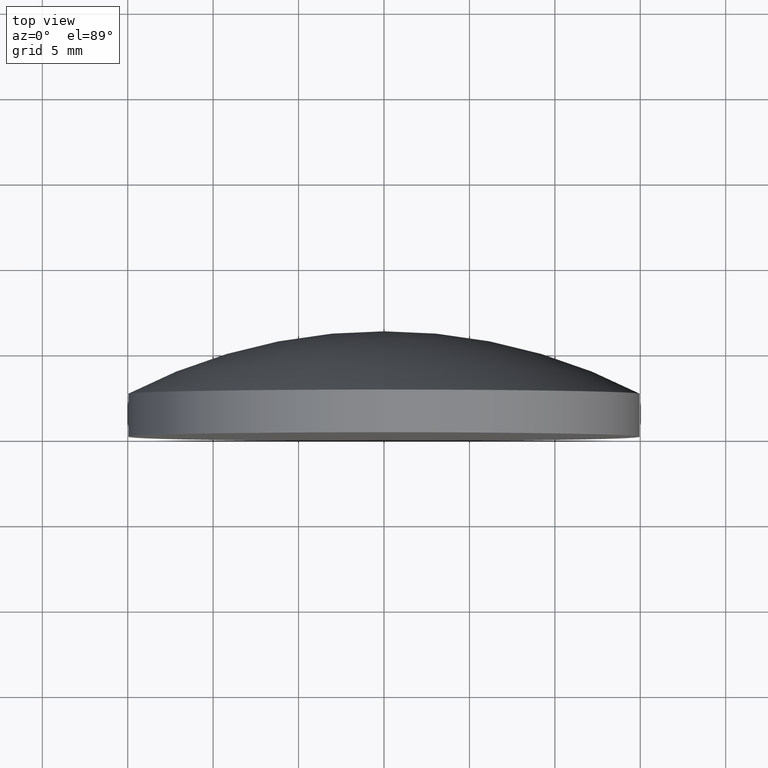
[diagram: clean part render]
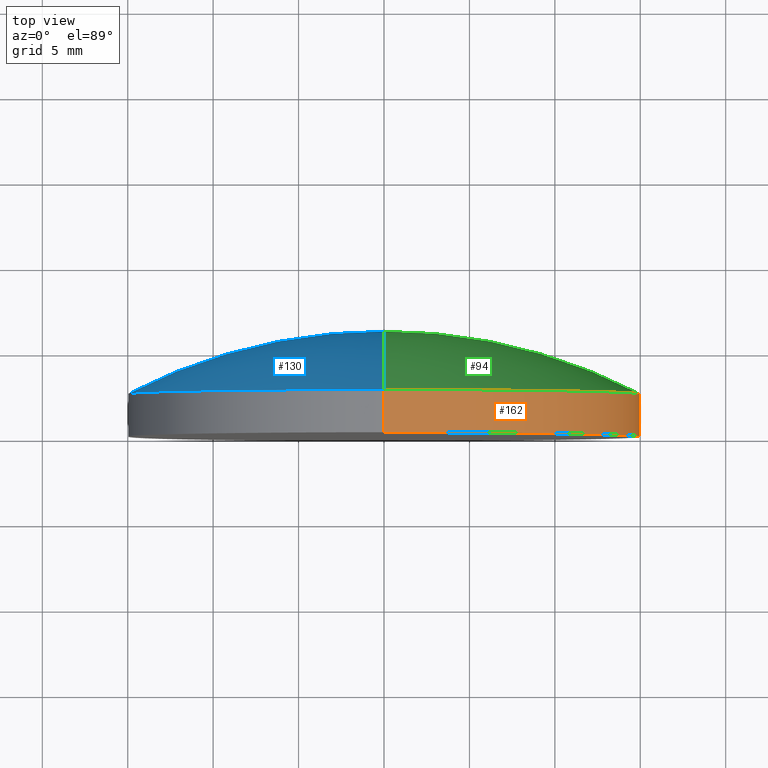
[diagram: same view with three faces highlighted in distinct colors, each labeled with its STEP entity id]
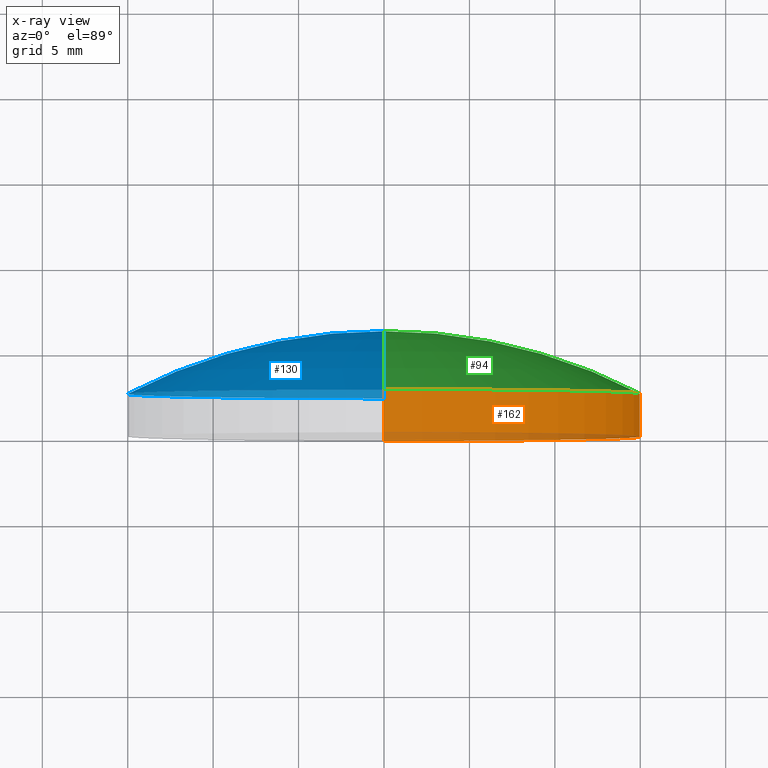
[diagram: x-ray of the same camera — body ghosted, the three highlighted faces saturated]
A machine part, top view with three faces highlighted in distinct colors.
The next image is the same camera in x-ray (body ghosted, the three faces saturated) — at least one of them is partly hidden behind the body in this view.
Their STEP definitions:

[orange] entity #162 — the highlighted cylindrical surface (partial cylindrical patch) has radius 15 mm, axis along (-0, 1, -0).
#2 = AXIS2_PLACEMENT_3D ( 'NONE', #6, #187, #19 ) ;
#6 = CARTESIAN_POINT ( 'NONE',  ( 0.000000000000000000, -1.734723475976807094E-15, 0.000000000000000000 ) ) ;
#10 = ORIENTED_EDGE ( 'NONE', *, *, #95, .F. ) ;
#17 = DIRECTION ( 'NONE',  ( -0.000000000000000000, 1.000000000000000000, -0.000000000000000000 ) ) ;
#19 = DIRECTION ( 'NONE',  ( 0.000000000000000000, 0.000000000000000000, 1.000000000000000000 ) ) ;
#21 = CARTESIAN_POINT ( 'NONE',  ( 0.000000000000000000, 2.499999999999998224, 0.000000000000000000 ) ) ;
#38 = CIRCLE ( 'NONE', #2, 15.00000000000000000 ) ;
#43 = ORIENTED_EDGE ( 'NONE', *, *, #157, .F. ) ;
#44 = EDGE_LOOP ( 'NONE', ( #71, #92, #43, #10 ) ) ;
#49 = FACE_OUTER_BOUND ( 'NONE', #44, .T. ) ;
#56 = VERTEX_POINT ( 'NONE', #116 ) ;
#57 = VERTEX_POINT ( 'NONE', #178 ) ;
#61 = CARTESIAN_POINT ( 'NONE',  ( 1.836970198721030378E-15, 2.499999999999998668, -15.00000000000000711 ) ) ;
#64 = CARTESIAN_POINT ( 'NONE',  ( 0.000000000000000000, -1.734723475976807094E-15, 15.00000000000000000 ) ) ;
#71 = ORIENTED_EDGE ( 'NONE', *, *, #121, .T. ) ;
#78 = DIRECTION ( 'NONE',  ( 0.000000000000000000, 0.000000000000000000, 1.000000000000000000 ) ) ;
#85 = DIRECTION ( 'NONE',  ( -0.000000000000000000, 1.000000000000000000, -0.000000000000000000 ) ) ;
#92 = ORIENTED_EDGE ( 'NONE', *, *, #185, .T. ) ;
#93 = CYLINDRICAL_SURFACE ( 'NONE', #199, 15.00000000000000000 ) ;
#95 = EDGE_CURVE ( 'NONE', #194, #57, #136, .T. ) ;
#116 = CARTESIAN_POINT ( 'NONE',  ( 1.836970198721029589E-15, -1.734723475976807094E-15, -15.00000000000000000 ) ) ;
#118 = CARTESIAN_POINT ( 'NONE',  ( 0.000000000000000000, 6.169999999999999929, 0.000000000000000000 ) ) ;
#121 = EDGE_CURVE ( 'NONE', #194, #56, #38, .T. ) ;
#122 = VECTOR ( 'NONE', #184, 1000.000000000000000 ) ;
#127 = VERTEX_POINT ( 'NONE', #61 ) ;
#133 = CARTESIAN_POINT ( 'NONE',  ( 1.836970198721029589E-15, 6.169999999999999929, -15.00000000000000000 ) ) ;
#136 = LINE ( 'NONE', #179, #122 ) ;
#138 = DIRECTION ( 'NONE',  ( 0.000000000000000000, 0.000000000000000000, 1.000000000000000000 ) ) ;
#157 = EDGE_CURVE ( 'NONE', #57, #127, #190, .T. ) ;
#162 = ADVANCED_FACE ( 'NONE', ( #49 ), #93, .T. ) ;
#177 = VECTOR ( 'NONE', #181, 1000.000000000000000 ) ;
#178 = CARTESIAN_POINT ( 'NONE',  ( 0.000000000000000000, 2.499999999999998668, 15.00000000000000711 ) ) ;
#179 = CARTESIAN_POINT ( 'NONE',  ( 0.000000000000000000, 6.169999999999999929, 15.00000000000000000 ) ) ;
#181 = DIRECTION ( 'NONE',  ( -0.000000000000000000, 1.000000000000000000, -0.000000000000000000 ) ) ;
#182 = AXIS2_PLACEMENT_3D ( 'NONE', #21, #85, #138 ) ;
#184 = DIRECTION ( 'NONE',  ( -0.000000000000000000, 1.000000000000000000, -0.000000000000000000 ) ) ;
#185 = EDGE_CURVE ( 'NONE', #56, #127, #201, .T. ) ;
#187 = DIRECTION ( 'NONE',  ( -0.000000000000000000, 1.000000000000000000, -0.000000000000000000 ) ) ;
#190 = CIRCLE ( 'NONE', #182, 15.00000000000000000 ) ;
#194 = VERTEX_POINT ( 'NONE', #64 ) ;
#199 = AXIS2_PLACEMENT_3D ( 'NONE', #118, #17, #78 ) ;
#201 = LINE ( 'NONE', #133, #177 ) ;

[blue] entity #130 — the highlighted toroidal blend (fillet) surface has major radius 0.0027 mm and minor (blend) radius 32.5 mm.
#3 = DIRECTION ( 'NONE',  ( 0.000000000000000000, 0.000000000000000000, 1.000000000000000000 ) ) ;
#15 = CARTESIAN_POINT ( 'NONE',  ( 0.000000000000000000, 6.169999999999999929, 0.000000000000000000 ) ) ;
#16 = EDGE_CURVE ( 'NONE', #127, #126, #196, .T. ) ;
#24 = AXIS2_PLACEMENT_3D ( 'NONE', #48, #66, #33 ) ;
#26 = EDGE_CURVE ( 'NONE', #127, #57, #153, .T. ) ;
#31 = DIRECTION ( 'NONE',  ( -0.000000000000000000, 1.000000000000000000, -0.000000000000000000 ) ) ;
#33 = DIRECTION ( 'NONE',  ( 0.000000000000000000, 0.000000000000000000, 1.000000000000000000 ) ) ;
#48 = CARTESIAN_POINT ( 'NONE',  ( 0.000000000000000000, -26.32999988757135768, -0.002703305825794977135 ) ) ;
#50 = FACE_OUTER_BOUND ( 'NONE', #197, .T. ) ;
#51 = DIRECTION ( 'NONE',  ( -0.000000000000000000, 1.000000000000000000, -0.000000000000000000 ) ) ;
#57 = VERTEX_POINT ( 'NONE', #178 ) ;
#58 = EDGE_CURVE ( 'NONE', #57, #126, #139, .T. ) ;
#61 = CARTESIAN_POINT ( 'NONE',  ( 1.836970198721030378E-15, 2.499999999999998668, -15.00000000000000711 ) ) ;
#62 = DIRECTION ( 'NONE',  ( 1.000000000000000000, 0.000000000000000000, 1.224646799147353207E-16 ) ) ;
#66 = DIRECTION ( 'NONE',  ( -1.000000000000000000, 0.000000000000000000, 0.000000000000000000 ) ) ;
#74 = CARTESIAN_POINT ( 'NONE',  ( 0.000000000000000000, 2.499999999999998224, 0.000000000000000000 ) ) ;
#82 = AXIS2_PLACEMENT_3D ( 'NONE', #151, #51, #3 ) ;
#110 = AXIS2_PLACEMENT_3D ( 'NONE', #149, #62, #183 ) ;
#113 = TOROIDAL_SURFACE ( 'NONE', #82, -0.002703305825794977135, 32.50000000000001421 ) ;
#126 = VERTEX_POINT ( 'NONE', #15 ) ;
#127 = VERTEX_POINT ( 'NONE', #61 ) ;
#129 = ORIENTED_EDGE ( 'NONE', *, *, #16, .F. ) ;
#130 = ADVANCED_FACE ( 'NONE', ( #50 ), #113, .T. ) ;
#131 = DIRECTION ( 'NONE',  ( 0.000000000000000000, 0.000000000000000000, 1.000000000000000000 ) ) ;
#139 = CIRCLE ( 'NONE', #24, 32.50000000000001421 ) ;
#149 = CARTESIAN_POINT ( 'NONE',  ( -3.310594826676211474E-19, -26.32999988757135768, 0.002703305825794977135 ) ) ;
#151 = CARTESIAN_POINT ( 'NONE',  ( 0.000000000000000000, -26.32999988757135768, 0.000000000000000000 ) ) ;
#153 = CIRCLE ( 'NONE', #173, 15.00000000000000000 ) ;
#163 = ORIENTED_EDGE ( 'NONE', *, *, #26, .T. ) ;
#173 = AXIS2_PLACEMENT_3D ( 'NONE', #74, #31, #131 ) ;
#178 = CARTESIAN_POINT ( 'NONE',  ( 0.000000000000000000, 2.499999999999998668, 15.00000000000000711 ) ) ;
#183 = DIRECTION ( 'NONE',  ( 1.224646799147353454E-16, 0.000000000000000000, -1.000000000000000000 ) ) ;
#192 = ORIENTED_EDGE ( 'NONE', *, *, #58, .T. ) ;
#196 = CIRCLE ( 'NONE', #110, 32.50000000000001421 ) ;
#197 = EDGE_LOOP ( 'NONE', ( #129, #163, #192 ) ) ;

[green] entity #94 — the highlighted toroidal blend (fillet) surface has major radius 0.0027 mm and minor (blend) radius 32.5 mm.
#15 = CARTESIAN_POINT ( 'NONE',  ( 0.000000000000000000, 6.169999999999999929, 0.000000000000000000 ) ) ;
#16 = EDGE_CURVE ( 'NONE', #127, #126, #196, .T. ) ;
#21 = CARTESIAN_POINT ( 'NONE',  ( 0.000000000000000000, 2.499999999999998224, 0.000000000000000000 ) ) ;
#24 = AXIS2_PLACEMENT_3D ( 'NONE', #48, #66, #33 ) ;
#27 = ORIENTED_EDGE ( 'NONE', *, *, #157, .T. ) ;
#32 = DIRECTION ( 'NONE',  ( 0.000000000000000000, 0.000000000000000000, 1.000000000000000000 ) ) ;
#33 = DIRECTION ( 'NONE',  ( 0.000000000000000000, 0.000000000000000000, 1.000000000000000000 ) ) ;
#48 = CARTESIAN_POINT ( 'NONE',  ( 0.000000000000000000, -26.32999988757135768, -0.002703305825794977135 ) ) ;
#57 = VERTEX_POINT ( 'NONE', #178 ) ;
#58 = EDGE_CURVE ( 'NONE', #57, #126, #139, .T. ) ;
#60 = ORIENTED_EDGE ( 'NONE', *, *, #16, .T. ) ;
#61 = CARTESIAN_POINT ( 'NONE',  ( 1.836970198721030378E-15, 2.499999999999998668, -15.00000000000000711 ) ) ;
#62 = DIRECTION ( 'NONE',  ( 1.000000000000000000, 0.000000000000000000, 1.224646799147353207E-16 ) ) ;
#66 = DIRECTION ( 'NONE',  ( -1.000000000000000000, 0.000000000000000000, 0.000000000000000000 ) ) ;
#85 = DIRECTION ( 'NONE',  ( -0.000000000000000000, 1.000000000000000000, -0.000000000000000000 ) ) ;
#94 = ADVANCED_FACE ( 'NONE', ( #134 ), #117, .T. ) ;
#104 = EDGE_LOOP ( 'NONE', ( #27, #60, #145 ) ) ;
#105 = AXIS2_PLACEMENT_3D ( 'NONE', #154, #120, #32 ) ;
#110 = AXIS2_PLACEMENT_3D ( 'NONE', #149, #62, #183 ) ;
#117 = TOROIDAL_SURFACE ( 'NONE', #105, -0.002703305825794977135, 32.50000000000001421 ) ;
#120 = DIRECTION ( 'NONE',  ( -0.000000000000000000, 1.000000000000000000, -0.000000000000000000 ) ) ;
#126 = VERTEX_POINT ( 'NONE', #15 ) ;
#127 = VERTEX_POINT ( 'NONE', #61 ) ;
#134 = FACE_OUTER_BOUND ( 'NONE', #104, .T. ) ;
#138 = DIRECTION ( 'NONE',  ( 0.000000000000000000, 0.000000000000000000, 1.000000000000000000 ) ) ;
#139 = CIRCLE ( 'NONE', #24, 32.50000000000001421 ) ;
#145 = ORIENTED_EDGE ( 'NONE', *, *, #58, .F. ) ;
#149 = CARTESIAN_POINT ( 'NONE',  ( -3.310594826676211474E-19, -26.32999988757135768, 0.002703305825794977135 ) ) ;
#154 = CARTESIAN_POINT ( 'NONE',  ( 0.000000000000000000, -26.32999988757135768, 0.000000000000000000 ) ) ;
#157 = EDGE_CURVE ( 'NONE', #57, #127, #190, .T. ) ;
#178 = CARTESIAN_POINT ( 'NONE',  ( 0.000000000000000000, 2.499999999999998668, 15.00000000000000711 ) ) ;
#182 = AXIS2_PLACEMENT_3D ( 'NONE', #21, #85, #138 ) ;
#183 = DIRECTION ( 'NONE',  ( 1.224646799147353454E-16, 0.000000000000000000, -1.000000000000000000 ) ) ;
#190 = CIRCLE ( 'NONE', #182, 15.00000000000000000 ) ;
#196 = CIRCLE ( 'NONE', #110, 32.50000000000001421 ) ;